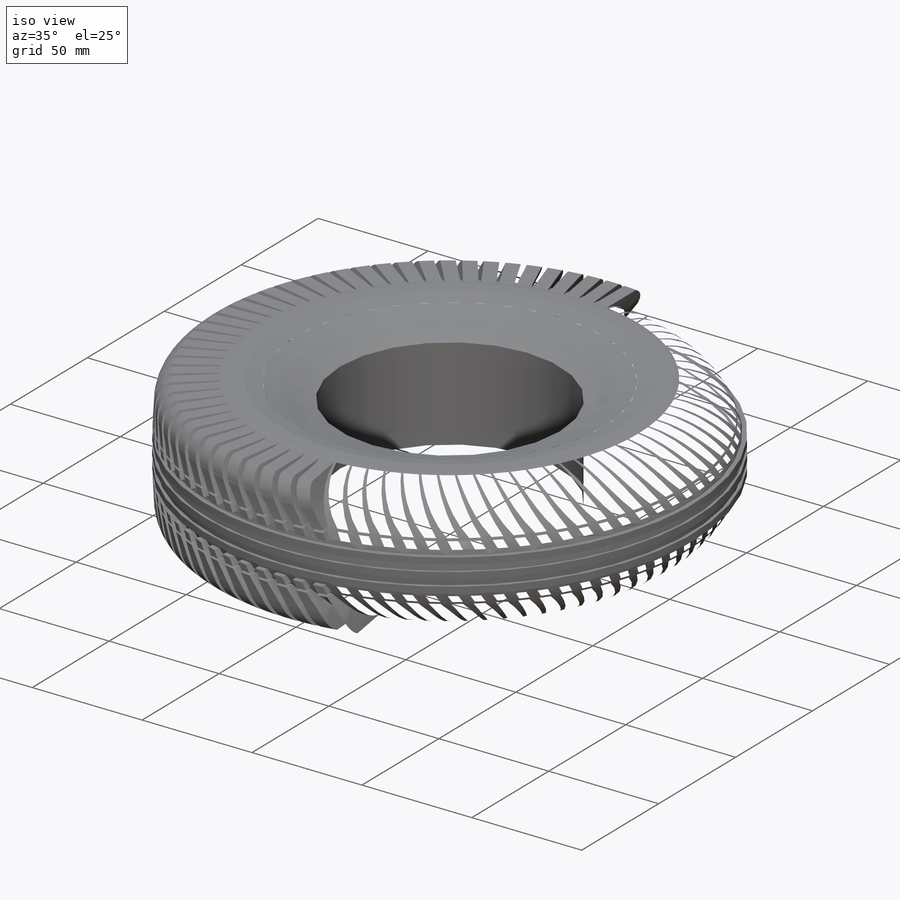
[diagram: iso view]
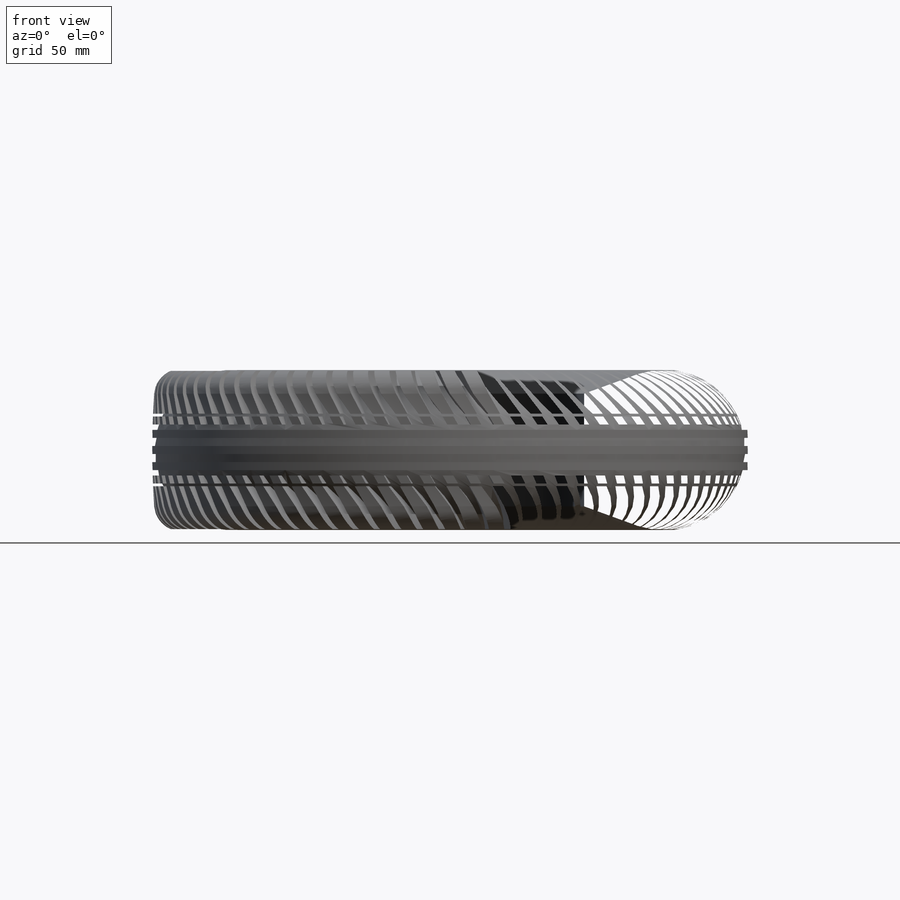
[diagram: front view]
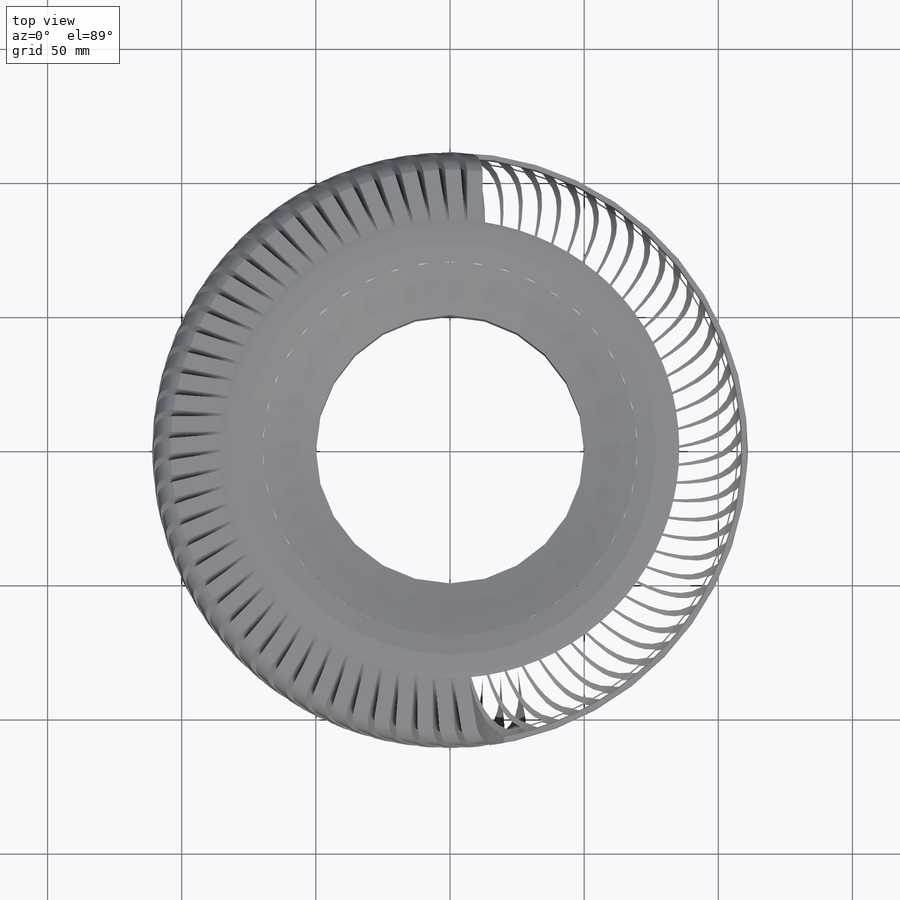
[diagram: top view]
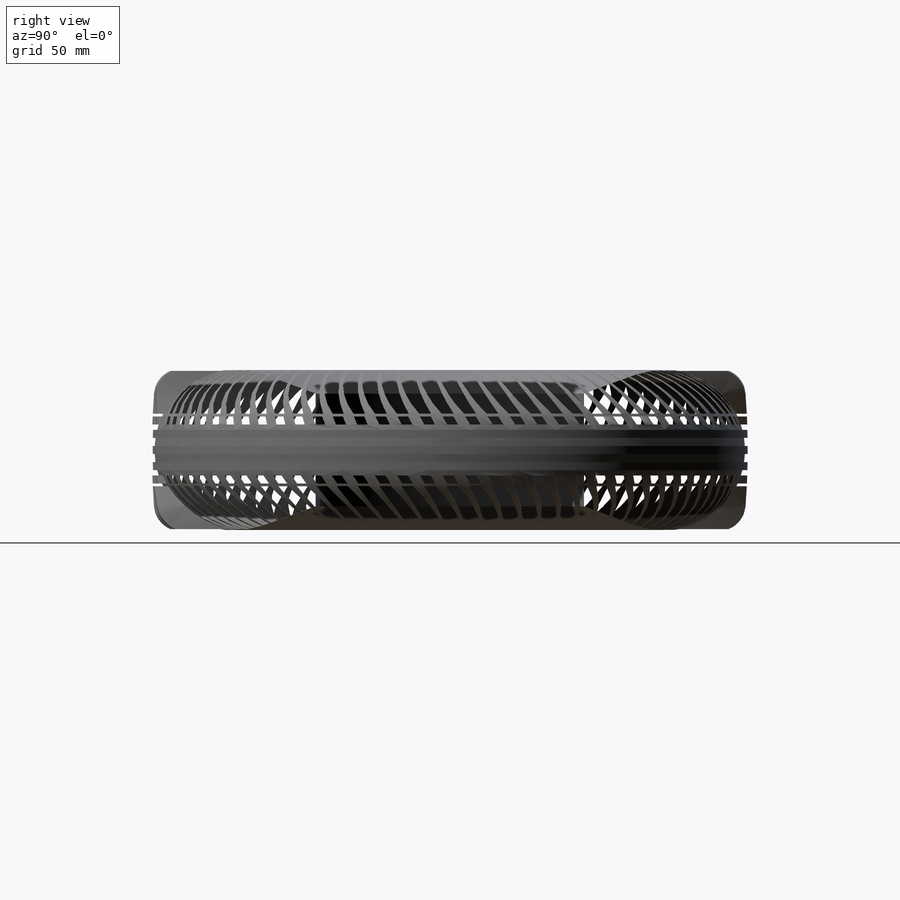
[diagram: right view]
SOLIDWORKS PART (.sldprt)
format: sldprt  version: not decoded by parser v0  size: 2,074,624 bytes
history: native  units: mm
features: plane x3, sketch x3, material x1, revolve x1, extrude x1, pattern_circular x1 (+10 scaffold rows collapsed)
feature tree (20):
  scaffold x10  (default folders/planes/origin — collapsed)
  material  "Materiál <není určen>"
  plane  "XY"
  plane  "XZ"
  plane  "ZY"
  sketch  "Sketch1"  dims[c1.D2=30.0mm c1.D3=160.0mm c1.D6=8.0mm c1.D8=60.0mm c1.D1=100.0mm c2.D3=~14.510012mm c3.D3=40.0deg c3.D4=110.0mm c4.D4=20.0deg c4.D5=24.0mm c4.D7=110.0mm c5.D7=20.0deg c5.D1=160.0mm]
  revolve  "Revolve1"  Angle=360deg
  sketch  "Sketch3"  dims[c1.D1=160.0mm c1.D2=10.0mm c1.D3=300.0mm c2.D1=60.5mm c2.D4=222.0mm c3.D1=360.0deg]
  sketch  "Sketch4"  dims[c1.D6=30.0mm c1.D1=2.0mm c1.D2=30.25mm c1.D3=3.0mm c1.D4=2.0mm c1.D5=8.0mm c2.D1=3.0mm c2.D2=3.0mm c2.D3=3.0mm c2.D4=2.0mm c2.D5=3.0mm c2.D6=2.0mm c2.D7=3.0mm c2.D8=1.0mm c2.D9=~4.187607mm c3.D9=60.0deg c3.D10=3.0mm c3.D11=1.0mm c3.D12=59.0mm]
  extrude  "Extrude1"  Depth=83mm
  pattern_circular  "CirPattern1"  Count=80 Angle=360deg
decode coverage: 6 of 6 modeling features carry decoded parameters
note: ~ marks probable driven/reference dimensions
note: suppression state not decoded; provenance and decode notes live in map.json
